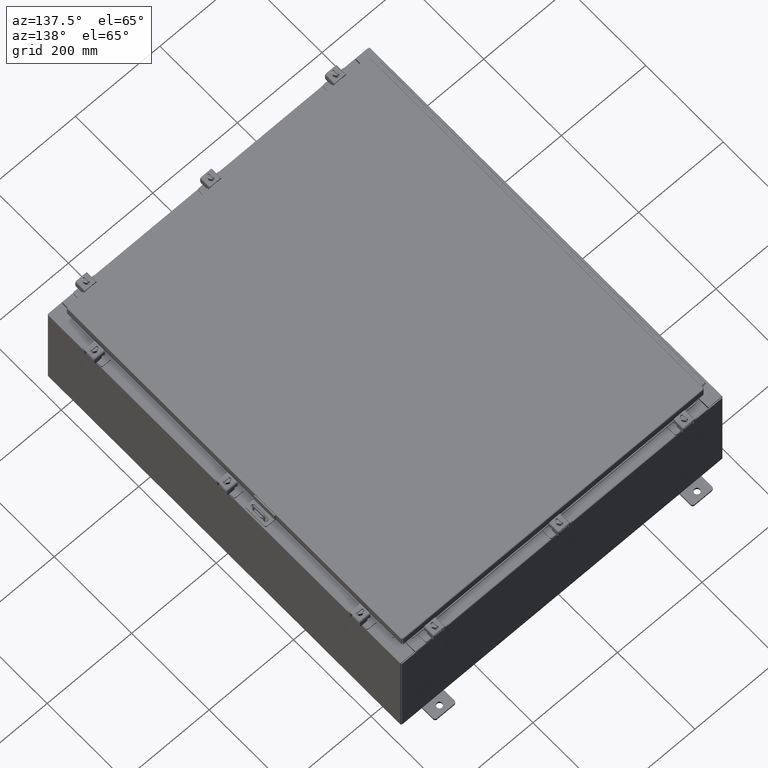
[diagram: clean part render]
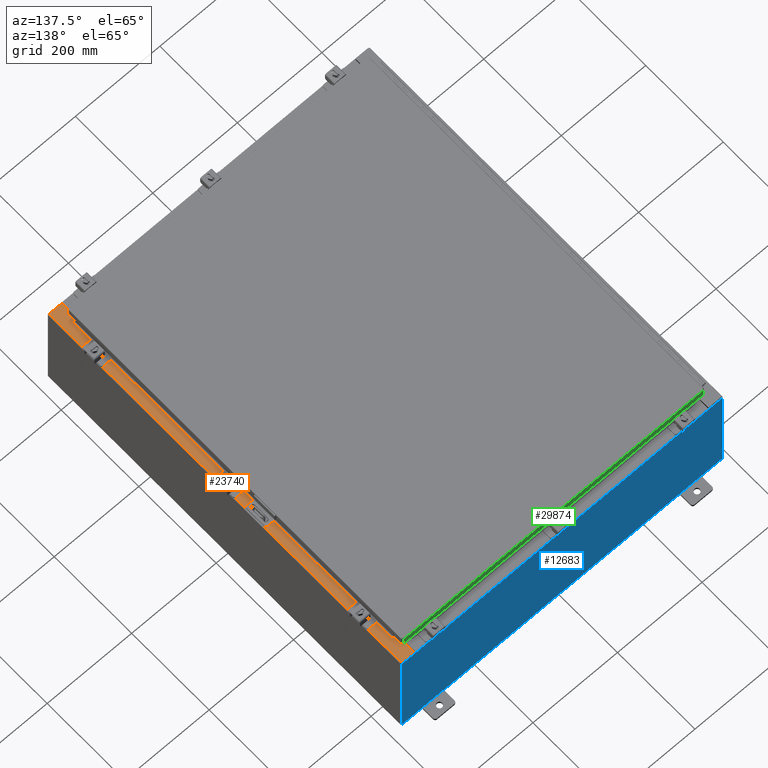
[diagram: same view with three faces highlighted in distinct colors, each labeled with its STEP entity id]
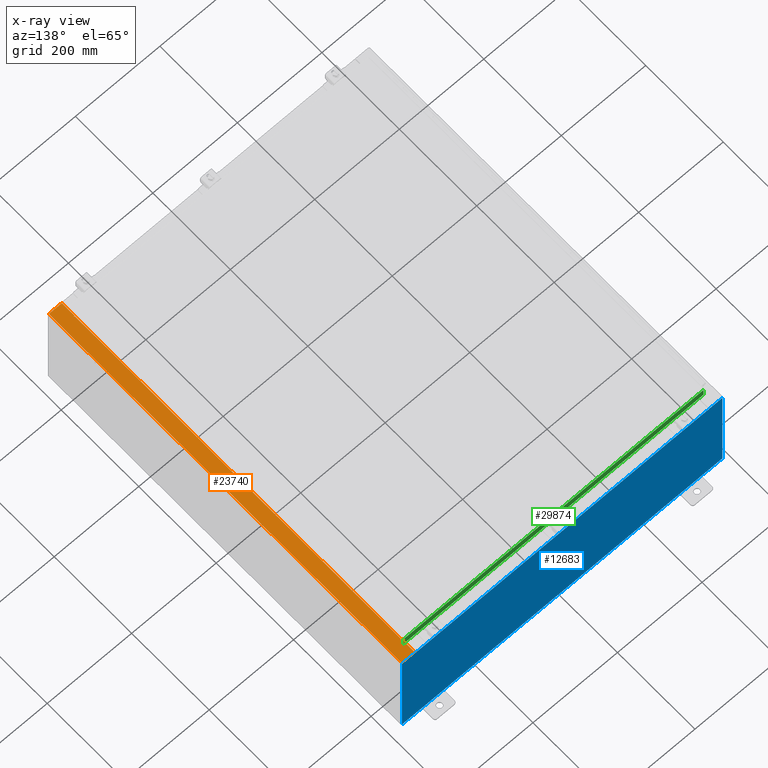
[diagram: x-ray of the same camera — body ghosted, the three highlighted faces saturated]
A machine part, auxiliary view with three faces highlighted in distinct colors.
The next image is the same camera in x-ray (body ghosted, the three faces saturated) — at least one of them is partly hidden behind the body in this view.
Their STEP definitions:

[orange] entity #23740 — the highlighted planar face has unit normal (-0, 0, -1).
#1186 = VERTEX_POINT ( 'NONE', #5946 ) ;
#1399 = CARTESIAN_POINT ( 'NONE',  ( 13.71270000000003700, 16.59375000000000000, 9.925300000000008900 ) ) ;
#1450 = ORIENTED_EDGE ( 'NONE', *, *, #27462, .F. ) ;
#1867 = LINE ( 'NONE', #14276, #17542 ) ;
#1913 = EDGE_CURVE ( 'NONE', #24183, #32082, #3360, .T. ) ;
#2129 = CARTESIAN_POINT ( 'NONE',  ( 14.91230000000003400, -17.92530000000000000, 9.925300000000001800 ) ) ;
#2144 = DIRECTION ( 'NONE',  ( 1.000000000000000000, 1.087045829762337300E-031, -5.349571789159789300E-015 ) ) ;
#2233 = DIRECTION ( 'NONE',  ( 5.349571789159788500E-015, 0.0000000000000000000, 1.000000000000000000 ) ) ;
#2407 = CARTESIAN_POINT ( 'NONE',  ( 13.71270000000003700, -16.59375000000000000, 9.925300000000008900 ) ) ;
#2753 = DIRECTION ( 'NONE',  ( 1.000000000000000000, 0.0000000000000000000, 0.0000000000000000000 ) ) ;
#3360 = LINE ( 'NONE', #22458, #37824 ) ;
#3495 = LINE ( 'NONE', #2129, #13431 ) ;
#4312 = LINE ( 'NONE', #20628, #8465 ) ;
#5073 = ORIENTED_EDGE ( 'NONE', *, *, #6265, .F. ) ;
#5141 = DIRECTION ( 'NONE',  ( -1.000000000000000000, 0.0000000000000000000, 0.0000000000000000000 ) ) ;
#5250 = VECTOR ( 'NONE', #5141, 39.37007874015748100 ) ;
#5273 = DIRECTION ( 'NONE',  ( -5.349571789159788500E-015, 0.0000000000000000000, -1.000000000000000000 ) ) ;
#5946 = CARTESIAN_POINT ( 'NONE',  ( 14.91230000000003400, 17.92530000000000000, 9.925300000000001800 ) ) ;
#6265 = EDGE_CURVE ( 'NONE', #27522, #20956, #4312, .T. ) ;
#6857 = CARTESIAN_POINT ( 'NONE',  ( 13.69970000000003400, 17.92530000000000000, 9.925300000000008900 ) ) ;
#7645 = EDGE_CURVE ( 'NONE', #25712, #27522, #39716, .T. ) ;
#7903 = ORIENTED_EDGE ( 'NONE', *, *, #34939, .T. ) ;
#8342 = LINE ( 'NONE', #31240, #28252 ) ;
#8465 = VECTOR ( 'NONE', #19848, 39.37007874015748100 ) ;
#9056 = LINE ( 'NONE', #42722, #34698 ) ;
#10764 = CARTESIAN_POINT ( 'NONE',  ( 13.69970000000003400, -17.92530000000000000, 9.925300000000008900 ) ) ;
#10821 = ORIENTED_EDGE ( 'NONE', *, *, #16646, .F. ) ;
#11211 = DIRECTION ( 'NONE',  ( -4.276128853718621600E-031, -1.000000000000000000, 2.287545828266532300E-045 ) ) ;
#12150 = LINE ( 'NONE', #38751, #21039 ) ;
#12807 = CARTESIAN_POINT ( 'NONE',  ( 13.75005000000003500, -16.63110000000000000, 9.925300000000008900 ) ) ;
#12814 = CARTESIAN_POINT ( 'NONE',  ( 13.75005000000003500, 16.59375000000000000, 9.925300000000008900 ) ) ;
#12926 = ORIENTED_EDGE ( 'NONE', *, *, #25475, .F. ) ;
#13431 = VECTOR ( 'NONE', #22140, 39.37007874015748100 ) ;
#13846 = FACE_OUTER_BOUND ( 'NONE', #32405, .T. ) ;
#13994 = LINE ( 'NONE', #25306, #32807 ) ;
#14276 = CARTESIAN_POINT ( 'NONE',  ( 13.71270000000003700, 16.59375000000000000, 9.925300000000008900 ) ) ;
#14350 = VERTEX_POINT ( 'NONE', #12807 ) ;
#14422 = ORIENTED_EDGE ( 'NONE', *, *, #40252, .F. ) ;
#15174 = CARTESIAN_POINT ( 'NONE',  ( 13.69970000000003400, -16.63110000000000000, 9.925300000000008900 ) ) ;
#15194 = PLANE ( 'NONE',  #31686 ) ;
#16646 = EDGE_CURVE ( 'NONE', #14350, #25712, #37571, .T. ) ;
#17542 = VECTOR ( 'NONE', #17612, 39.37007874015748100 ) ;
#17581 = EDGE_CURVE ( 'NONE', #1186, #29224, #13994, .T. ) ;
#17612 = DIRECTION ( 'NONE',  ( 1.000000000000000000, 0.0000000000000000000, 0.0000000000000000000 ) ) ;
#17659 = CARTESIAN_POINT ( 'NONE',  ( 13.69970000000003400, 16.63110000000000000, 9.925300000000008900 ) ) ;
#18521 = CARTESIAN_POINT ( 'NONE',  ( 5.335691853495967900E-014, 0.0000000000000000000, 9.925300000000083500 ) ) ;
#18767 = DIRECTION ( 'NONE',  ( -1.000000000000000000, 0.0000000000000000000, 0.0000000000000000000 ) ) ;
#19420 = AXIS2_PLACEMENT_3D ( 'NONE', #42738, #22773, #2753 ) ;
#19427 = ORIENTED_EDGE ( 'NONE', *, *, #7645, .F. ) ;
#19467 = DIRECTION ( 'NONE',  ( 1.000000000000000000, 0.0000000000000000000, 0.0000000000000000000 ) ) ;
#19848 = DIRECTION ( 'NONE',  ( -0.0000000000000000000, 1.000000000000000000, -0.0000000000000000000 ) ) ;
#20628 = CARTESIAN_POINT ( 'NONE',  ( 13.71270000000003700, -16.59375000000000000, 9.925300000000008900 ) ) ;
#20956 = VERTEX_POINT ( 'NONE', #1399 ) ;
#21039 = VECTOR ( 'NONE', #18767, 39.37007874015748100 ) ;
#22140 = DIRECTION ( 'NONE',  ( -0.0000000000000000000, -1.000000000000000000, -0.0000000000000000000 ) ) ;
#22254 = CARTESIAN_POINT ( 'NONE',  ( 13.75005000000003500, -16.61242500000000200, 9.925300000000008900 ) ) ;
#22280 = CARTESIAN_POINT ( 'NONE',  ( 13.75005000000003500, -16.59375000000000000, 9.925300000000008900 ) ) ;
#22458 = CARTESIAN_POINT ( 'NONE',  ( 5.335691853495967900E-014, -17.92530000000000000, 9.925300000000083500 ) ) ;
#22658 = EDGE_CURVE ( 'NONE', #1186, #32082, #3495, .T. ) ;
#22760 = DIRECTION ( 'NONE',  ( -4.276128853718621600E-031, -1.000000000000000000, 2.287545828266532300E-045 ) ) ;
#22773 = DIRECTION ( 'NONE',  ( 5.349571789159788500E-015, 0.0000000000000000000, 1.000000000000000000 ) ) ;
#23740 = ADVANCED_FACE ( 'NONE', ( #13846 ), #15194, .F. ) ;
#24183 = VERTEX_POINT ( 'NONE', #10764 ) ;
#24305 = ORIENTED_EDGE ( 'NONE', *, *, #17581, .T. ) ;
#25207 = CARTESIAN_POINT ( 'NONE',  ( 14.91230000000003400, -17.92530000000000000, 9.925300000000001800 ) ) ;
#25306 = CARTESIAN_POINT ( 'NONE',  ( 5.335691853495967900E-014, 17.92530000000000000, 9.925300000000083500 ) ) ;
#25475 = EDGE_CURVE ( 'NONE', #20956, #29720, #1867, .T. ) ;
#25629 = DIRECTION ( 'NONE',  ( 1.000000000000000000, 0.0000000000000000000, 0.0000000000000000000 ) ) ;
#25712 = VERTEX_POINT ( 'NONE', #22280 ) ;
#26515 = VERTEX_POINT ( 'NONE', #30556 ) ;
#27462 = EDGE_CURVE ( 'NONE', #26515, #33100, #12150, .T. ) ;
#27522 = VERTEX_POINT ( 'NONE', #2407 ) ;
#28252 = VECTOR ( 'NONE', #11211, 39.37007874015748100 ) ;
#28628 = DIRECTION ( 'NONE',  ( -1.000000000000000000, 0.0000000000000000000, 5.349571789159788500E-015 ) ) ;
#28738 = VECTOR ( 'NONE', #19467, 39.37007874015748100 ) ;
#29224 = VERTEX_POINT ( 'NONE', #6857 ) ;
#29720 = VERTEX_POINT ( 'NONE', #12814 ) ;
#30556 = CARTESIAN_POINT ( 'NONE',  ( 13.75005000000003500, 16.63110000000000000, 9.925300000000008900 ) ) ;
#31240 = CARTESIAN_POINT ( 'NONE',  ( 13.69970000000003400, -5.858168245728892200E-030, 9.925300000000008900 ) ) ;
#31686 = AXIS2_PLACEMENT_3D ( 'NONE', #18521, #5273, #28628 ) ;
#31840 = ORIENTED_EDGE ( 'NONE', *, *, #22658, .F. ) ;
#31867 = DIRECTION ( 'NONE',  ( -1.000000000000000000, 4.861730685829018000E-063, 5.349571789159789300E-015 ) ) ;
#32082 = VERTEX_POINT ( 'NONE', #25207 ) ;
#32405 = EDGE_LOOP ( 'NONE', ( #14422, #7903, #32786, #31840, #24305, #34109, #1450, #41025, #12926, #5073, #19427, #10821 ) ) ;
#32621 = AXIS2_PLACEMENT_3D ( 'NONE', #22254, #2233, #25629 ) ;
#32786 = ORIENTED_EDGE ( 'NONE', *, *, #1913, .T. ) ;
#32807 = VECTOR ( 'NONE', #31867, 39.37007874015748100 ) ;
#33100 = VERTEX_POINT ( 'NONE', #17659 ) ;
#33262 = VERTEX_POINT ( 'NONE', #15174 ) ;
#34109 = ORIENTED_EDGE ( 'NONE', *, *, #36986, .T. ) ;
#34698 = VECTOR ( 'NONE', #22760, 39.37007874015748100 ) ;
#34939 = EDGE_CURVE ( 'NONE', #33262, #24183, #9056, .T. ) ;
#35171 = EDGE_CURVE ( 'NONE', #29720, #26515, #41962, .T. ) ;
#36986 = EDGE_CURVE ( 'NONE', #29224, #33100, #8342, .T. ) ;
#37571 = CIRCLE ( 'NONE', #32621, 0.01867499999999949400 ) ;
#37824 = VECTOR ( 'NONE', #2144, 39.37007874015748100 ) ;
#38629 = LINE ( 'NONE', #39433, #28738 ) ;
#38751 = CARTESIAN_POINT ( 'NONE',  ( 13.75005000000003500, 16.63110000000000000, 9.925300000000008900 ) ) ;
#39433 = CARTESIAN_POINT ( 'NONE',  ( 13.69970000000003400, -16.63110000000000000, 9.925300000000008900 ) ) ;
#39716 = LINE ( 'NONE', #42626, #5250 ) ;
#40252 = EDGE_CURVE ( 'NONE', #33262, #14350, #38629, .T. ) ;
#41025 = ORIENTED_EDGE ( 'NONE', *, *, #35171, .F. ) ;
#41962 = CIRCLE ( 'NONE', #19420, 0.01867499999999949400 ) ;
#42626 = CARTESIAN_POINT ( 'NONE',  ( 13.75005000000003500, -16.59375000000000000, 9.925300000000008900 ) ) ;
#42722 = CARTESIAN_POINT ( 'NONE',  ( 13.69970000000003400, -5.858168245728892200E-030, 9.925300000000008900 ) ) ;
#42738 = CARTESIAN_POINT ( 'NONE',  ( 13.75005000000003500, 16.61242500000000200, 9.925300000000008900 ) ) ;

[blue] entity #12683 — the highlighted planar face has unit normal (0, -1, 0).
#143 = VECTOR ( 'NONE', #25066, 39.37007874015748100 ) ;
#496 = LINE ( 'NONE', #41241, #26107 ) ;
#1064 = CARTESIAN_POINT ( 'NONE',  ( -13.63720000000000000, -7.171100983368691200E-016, 4.912300000000000100 ) ) ;
#1168 = DIRECTION ( 'NONE',  ( 0.0000000000000000000, 0.0000000000000000000, 1.000000000000000000 ) ) ;
#1253 = VECTOR ( 'NONE', #4248, 39.37007874015748100 ) ;
#1332 = CARTESIAN_POINT ( 'NONE',  ( 13.63719999999999800, 0.0000000000000000000, 4.874950000000000100 ) ) ;
#1443 = CARTESIAN_POINT ( 'NONE',  ( -14.92530000000000200, 0.0000000000000000000, -4.925300000000000000 ) ) ;
#2290 = LINE ( 'NONE', #37525, #1253 ) ;
#2546 = LINE ( 'NONE', #5598, #38065 ) ;
#2800 = EDGE_LOOP ( 'NONE', ( #28625, #13926, #3280, #40445, #38409, #40868, #39631, #14550, #14463, #6926, #28685, #7218 ) ) ;
#2931 = CARTESIAN_POINT ( 'NONE',  ( 13.65587499999999800, 0.0000000000000000000, 4.874950000000000100 ) ) ;
#3280 = ORIENTED_EDGE ( 'NONE', *, *, #16472, .F. ) ;
#3830 = EDGE_CURVE ( 'NONE', #42234, #40767, #39295, .T. ) ;
#3975 = VERTEX_POINT ( 'NONE', #23640 ) ;
#4248 = DIRECTION ( 'NONE',  ( -4.340572780400004900E-014, 0.0000000000000000000, -1.000000000000000000 ) ) ;
#4343 = DIRECTION ( 'NONE',  ( 0.0000000000000000000, -1.000000000000000000, 0.0000000000000000000 ) ) ;
#4523 = CARTESIAN_POINT ( 'NONE',  ( -13.67455000000000000, -0.0000000000000000000, 0.0000000000000000000 ) ) ;
#5424 = CARTESIAN_POINT ( 'NONE',  ( -14.92530000000000200, 0.0000000000000000000, 4.925300000000000000 ) ) ;
#5598 = CARTESIAN_POINT ( 'NONE',  ( -13.63720000000000400, -7.171100983368691200E-016, 4.912300000000000100 ) ) ;
#6288 = DIRECTION ( 'NONE',  ( 0.0000000000000000000, 0.0000000000000000000, -1.000000000000000000 ) ) ;
#6552 = FACE_OUTER_BOUND ( 'NONE', #2800, .T. ) ;
#6621 = VERTEX_POINT ( 'NONE', #11855 ) ;
#6926 = ORIENTED_EDGE ( 'NONE', *, *, #22226, .T. ) ;
#7218 = ORIENTED_EDGE ( 'NONE', *, *, #28922, .T. ) ;
#7248 = CARTESIAN_POINT ( 'NONE',  ( -13.67455000000000000, 0.0000000000000000000, 4.925300000000000000 ) ) ;
#7536 = CARTESIAN_POINT ( 'NONE',  ( 0.0000000000000000000, 0.0000000000000000000, 0.0000000000000000000 ) ) ;
#7695 = VERTEX_POINT ( 'NONE', #7248 ) ;
#8419 = CIRCLE ( 'NONE', #40673, 0.01867499999999949400 ) ;
#11157 = DIRECTION ( 'NONE',  ( 0.0000000000000000000, 0.0000000000000000000, -1.000000000000000000 ) ) ;
#11855 = CARTESIAN_POINT ( 'NONE',  ( -13.67455000000000000, 0.0000000000000000000, 4.874950000000000100 ) ) ;
#12683 = ADVANCED_FACE ( 'NONE', ( #6552 ), #24373, .F. ) ;
#12905 = VECTOR ( 'NONE', #1168, 39.37007874015748100 ) ;
#13857 = VERTEX_POINT ( 'NONE', #1332 ) ;
#13926 = ORIENTED_EDGE ( 'NONE', *, *, #15029, .F. ) ;
#14155 = VERTEX_POINT ( 'NONE', #21882 ) ;
#14463 = ORIENTED_EDGE ( 'NONE', *, *, #34486, .T. ) ;
#14550 = ORIENTED_EDGE ( 'NONE', *, *, #31403, .T. ) ;
#15002 = LINE ( 'NONE', #41304, #31724 ) ;
#15029 = EDGE_CURVE ( 'NONE', #14155, #6621, #8419, .T. ) ;
#15402 = AXIS2_PLACEMENT_3D ( 'NONE', #7536, #4343, #27730 ) ;
#16405 = DIRECTION ( 'NONE',  ( -0.0000000000000000000, 1.000000000000000000, -0.0000000000000000000 ) ) ;
#16472 = EDGE_CURVE ( 'NONE', #28762, #14155, #496, .T. ) ;
#17750 = CARTESIAN_POINT ( 'NONE',  ( -14.92530000000000200, 0.0000000000000000000, -4.925300000000000000 ) ) ;
#17862 = DIRECTION ( 'NONE',  ( -0.0000000000000000000, -0.0000000000000000000, 1.000000000000000000 ) ) ;
#17887 = LINE ( 'NONE', #34982, #143 ) ;
#18137 = LINE ( 'NONE', #1443, #26005 ) ;
#21470 = DIRECTION ( 'NONE',  ( -1.000000000000000000, -0.0000000000000000000, -0.0000000000000000000 ) ) ;
#21522 = VECTOR ( 'NONE', #28794, 39.37007874015748100 ) ;
#21715 = CARTESIAN_POINT ( 'NONE',  ( -14.92530000000000200, 0.0000000000000000000, 4.925300000000000000 ) ) ;
#21882 = CARTESIAN_POINT ( 'NONE',  ( -13.63720000000000000, -0.0000000000000000000, 4.874950000000000100 ) ) ;
#22226 = EDGE_CURVE ( 'NONE', #26990, #42234, #18137, .T. ) ;
#22236 = VERTEX_POINT ( 'NONE', #28165 ) ;
#22619 = VECTOR ( 'NONE', #17862, 39.37007874015748100 ) ;
#22772 = VERTEX_POINT ( 'NONE', #36288 ) ;
#23544 = DIRECTION ( 'NONE',  ( 0.0000000000000000000, 0.0000000000000000000, -1.000000000000000000 ) ) ;
#23640 = CARTESIAN_POINT ( 'NONE',  ( 13.67455000000000000, 0.0000000000000000000, 4.925300000000000000 ) ) ;
#24373 = PLANE ( 'NONE',  #15402 ) ;
#24817 = LINE ( 'NONE', #36670, #41500 ) ;
#25066 = DIRECTION ( 'NONE',  ( 0.0000000000000000000, 0.0000000000000000000, 1.000000000000000000 ) ) ;
#26005 = VECTOR ( 'NONE', #21470, 39.37007874015748100 ) ;
#26107 = VECTOR ( 'NONE', #11157, 39.37007874015748100 ) ;
#26312 = DIRECTION ( 'NONE',  ( -0.0000000000000000000, 1.000000000000000000, -0.0000000000000000000 ) ) ;
#26579 = EDGE_CURVE ( 'NONE', #3975, #22236, #2290, .T. ) ;
#26912 = AXIS2_PLACEMENT_3D ( 'NONE', #2931, #26312, #6288 ) ;
#26990 = VERTEX_POINT ( 'NONE', #32843 ) ;
#27409 = CARTESIAN_POINT ( 'NONE',  ( 14.92529999999999800, 0.0000000000000000000, 4.925300000000000000 ) ) ;
#27730 = DIRECTION ( 'NONE',  ( 0.0000000000000000000, -0.0000000000000000000, -1.000000000000000000 ) ) ;
#28092 = VERTEX_POINT ( 'NONE', #27409 ) ;
#28165 = CARTESIAN_POINT ( 'NONE',  ( 13.67454999999999800, 0.0000000000000000000, 4.874950000000000100 ) ) ;
#28243 = EDGE_CURVE ( 'NONE', #13857, #22772, #17887, .T. ) ;
#28301 = LINE ( 'NONE', #5424, #21522 ) ;
#28625 = ORIENTED_EDGE ( 'NONE', *, *, #33153, .F. ) ;
#28685 = ORIENTED_EDGE ( 'NONE', *, *, #3830, .T. ) ;
#28762 = VERTEX_POINT ( 'NONE', #1064 ) ;
#28794 = DIRECTION ( 'NONE',  ( 1.000000000000000000, 0.0000000000000000000, 0.0000000000000000000 ) ) ;
#28922 = EDGE_CURVE ( 'NONE', #40767, #7695, #28301, .T. ) ;
#28977 = DIRECTION ( 'NONE',  ( 1.000000000000000000, 0.0000000000000000000, 0.0000000000000000000 ) ) ;
#30679 = LINE ( 'NONE', #4523, #12905 ) ;
#31029 = EDGE_CURVE ( 'NONE', #22236, #13857, #38519, .T. ) ;
#31403 = EDGE_CURVE ( 'NONE', #3975, #28092, #15002, .T. ) ;
#31526 = DIRECTION ( 'NONE',  ( 1.000000000000000000, 0.0000000000000000000, 0.0000000000000000000 ) ) ;
#31724 = VECTOR ( 'NONE', #31526, 39.37007874015748100 ) ;
#32843 = CARTESIAN_POINT ( 'NONE',  ( 14.92529999999999800, 0.0000000000000000000, -4.925300000000000000 ) ) ;
#33153 = EDGE_CURVE ( 'NONE', #6621, #7695, #30679, .T. ) ;
#34486 = EDGE_CURVE ( 'NONE', #28092, #26990, #24817, .T. ) ;
#34982 = CARTESIAN_POINT ( 'NONE',  ( 13.63719999999999800, 0.0000000000000000000, 0.0000000000000000000 ) ) ;
#36288 = CARTESIAN_POINT ( 'NONE',  ( 13.63719999999999800, 0.0000000000000000000, 4.912300000000000100 ) ) ;
#36381 = CARTESIAN_POINT ( 'NONE',  ( -13.65587500000000000, 0.0000000000000000000, 4.874950000000000100 ) ) ;
#36670 = CARTESIAN_POINT ( 'NONE',  ( 14.92529999999999800, 0.0000000000000000000, 4.925300000000000000 ) ) ;
#37525 = CARTESIAN_POINT ( 'NONE',  ( 13.67454999999978500, -0.0000000000000000000, -5.935537951421795000E-013 ) ) ;
#37825 = EDGE_CURVE ( 'NONE', #28762, #22772, #2546, .T. ) ;
#38065 = VECTOR ( 'NONE', #28977, 39.37007874015748100 ) ;
#38409 = ORIENTED_EDGE ( 'NONE', *, *, #28243, .F. ) ;
#38519 = CIRCLE ( 'NONE', #26912, 0.01867499999999949400 ) ;
#39295 = LINE ( 'NONE', #21715, #22619 ) ;
#39631 = ORIENTED_EDGE ( 'NONE', *, *, #26579, .F. ) ;
#39746 = DIRECTION ( 'NONE',  ( 0.0000000000000000000, 0.0000000000000000000, -1.000000000000000000 ) ) ;
#40445 = ORIENTED_EDGE ( 'NONE', *, *, #37825, .T. ) ;
#40673 = AXIS2_PLACEMENT_3D ( 'NONE', #36381, #16405, #39746 ) ;
#40767 = VERTEX_POINT ( 'NONE', #42518 ) ;
#40868 = ORIENTED_EDGE ( 'NONE', *, *, #31029, .F. ) ;
#41241 = CARTESIAN_POINT ( 'NONE',  ( -13.63720000000000000, -0.0000000000000000000, 0.0000000000000000000 ) ) ;
#41304 = CARTESIAN_POINT ( 'NONE',  ( -14.92530000000000200, 0.0000000000000000000, 4.925300000000000000 ) ) ;
#41500 = VECTOR ( 'NONE', #23544, 39.37007874015748100 ) ;
#42234 = VERTEX_POINT ( 'NONE', #17750 ) ;
#42518 = CARTESIAN_POINT ( 'NONE',  ( -14.92530000000000200, 0.0000000000000000000, 4.925300000000000000 ) ) ;

[green] entity #29874 — the highlighted planar face has unit normal (0, -1, -0).
#1933 = VERTEX_POINT ( 'NONE', #39397 ) ;
#2789 = CARTESIAN_POINT ( 'NONE',  ( 13.98915786437626400, 17.09400000000000100, 4.844676449176209300E-014 ) ) ;
#3235 = VECTOR ( 'NONE', #34972, 39.37007874015748100 ) ;
#3591 = CARTESIAN_POINT ( 'NONE',  ( -6.077841349889360200E-030, 17.09400000000000100, 4.844676449176209300E-014 ) ) ;
#4430 = VECTOR ( 'NONE', #4798, 39.37007874015748100 ) ;
#4798 = DIRECTION ( 'NONE',  ( 1.000000000000000000, -0.0000000000000000000, -0.0000000000000000000 ) ) ;
#5693 = ORIENTED_EDGE ( 'NONE', *, *, #18692, .F. ) ;
#6939 = DIRECTION ( 'NONE',  ( 3.555540745226020000E-031, -1.000000000000000000, -2.818880942772347100E-015 ) ) ;
#8826 = VERTEX_POINT ( 'NONE', #40679 ) ;
#9282 = VERTEX_POINT ( 'NONE', #29729 ) ;
#9679 = LINE ( 'NONE', #23564, #43109 ) ;
#11040 = CARTESIAN_POINT ( 'NONE',  ( -13.98915786437627600, 17.09400000000000500, -0.8500000000000032000 ) ) ;
#11593 = CARTESIAN_POINT ( 'NONE',  ( -13.98915786437627600, 17.09400000000000100, -0.07469999999999978000 ) ) ;
#12725 = DIRECTION ( 'NONE',  ( 0.0000000000000000000, 2.818880942772347100E-015, -1.000000000000000000 ) ) ;
#13327 = LINE ( 'NONE', #21465, #4430 ) ;
#13477 = CARTESIAN_POINT ( 'NONE',  ( -14.07800000000000700, 17.09400000000000500, -0.8500000000000032000 ) ) ;
#14580 = AXIS2_PLACEMENT_3D ( 'NONE', #3591, #6939, #30347 ) ;
#16701 = EDGE_LOOP ( 'NONE', ( #19829, #20288, #20835, #35046, #31764, #5693 ) ) ;
#18692 = EDGE_CURVE ( 'NONE', #1933, #25507, #36675, .T. ) ;
#18750 = CARTESIAN_POINT ( 'NONE',  ( 13.98915786437626500, 17.09400000000000100, -0.08770000000000224800 ) ) ;
#19491 = EDGE_CURVE ( 'NONE', #21099, #8826, #28256, .T. ) ;
#19829 = ORIENTED_EDGE ( 'NONE', *, *, #23403, .F. ) ;
#20288 = ORIENTED_EDGE ( 'NONE', *, *, #19491, .T. ) ;
#20762 = VECTOR ( 'NONE', #37884, 39.37007874015748100 ) ;
#20835 = ORIENTED_EDGE ( 'NONE', *, *, #31973, .F. ) ;
#21099 = VERTEX_POINT ( 'NONE', #18750 ) ;
#21465 = CARTESIAN_POINT ( 'NONE',  ( -13.23915786437627800, 17.09399999999999400, -0.8500000000000050800 ) ) ;
#21832 = LINE ( 'NONE', #34565, #20762 ) ;
#23372 = EDGE_CURVE ( 'NONE', #25507, #9282, #35281, .T. ) ;
#23403 = EDGE_CURVE ( 'NONE', #21099, #1933, #9679, .T. ) ;
#23564 = CARTESIAN_POINT ( 'NONE',  ( -14.07800000000000700, 17.09400000000000100, -0.08770000000000007000 ) ) ;
#23621 = PLANE ( 'NONE',  #14580 ) ;
#25389 = VECTOR ( 'NONE', #40190, 39.37007874015748100 ) ;
#25507 = VERTEX_POINT ( 'NONE', #11040 ) ;
#26906 = DIRECTION ( 'NONE',  ( -1.000000000000000000, -5.743565819211262900E-031, 7.762034361881697200E-017 ) ) ;
#28211 = FACE_OUTER_BOUND ( 'NONE', #16701, .T. ) ;
#28256 = LINE ( 'NONE', #2789, #29314 ) ;
#29314 = VECTOR ( 'NONE', #12725, 39.37007874015748100 ) ;
#29729 = CARTESIAN_POINT ( 'NONE',  ( -13.23915786437627800, 17.09399999999999400, -0.8500000000000050800 ) ) ;
#29874 = ADVANCED_FACE ( 'NONE', ( #28211 ), #23621, .F. ) ;
#30347 = DIRECTION ( 'NONE',  ( 0.0000000000000000000, 2.818880942772347100E-015, -1.000000000000000000 ) ) ;
#31425 = CARTESIAN_POINT ( 'NONE',  ( 13.23915786437626400, 17.09399999999999400, -0.8500000000000050800 ) ) ;
#31764 = ORIENTED_EDGE ( 'NONE', *, *, #23372, .F. ) ;
#31973 = EDGE_CURVE ( 'NONE', #41135, #8826, #21832, .T. ) ;
#34565 = CARTESIAN_POINT ( 'NONE',  ( -14.07800000000000700, 17.09400000000000500, -0.8500000000000032000 ) ) ;
#34972 = DIRECTION ( 'NONE',  ( -0.0000000000000000000, 2.818880942772347100E-015, -1.000000000000000000 ) ) ;
#35046 = ORIENTED_EDGE ( 'NONE', *, *, #41794, .F. ) ;
#35281 = LINE ( 'NONE', #13477, #25389 ) ;
#36675 = LINE ( 'NONE', #11593, #3235 ) ;
#37884 = DIRECTION ( 'NONE',  ( 1.000000000000000000, -0.0000000000000000000, 1.261330583805775800E-016 ) ) ;
#39397 = CARTESIAN_POINT ( 'NONE',  ( -13.98915786437627800, 17.09400000000000100, -0.08770000000000115200 ) ) ;
#40190 = DIRECTION ( 'NONE',  ( 1.000000000000000000, -0.0000000000000000000, 1.261330583805775800E-016 ) ) ;
#40679 = CARTESIAN_POINT ( 'NONE',  ( 13.98915786437626500, 17.09400000000000500, -0.8499999999999996400 ) ) ;
#41135 = VERTEX_POINT ( 'NONE', #31425 ) ;
#41794 = EDGE_CURVE ( 'NONE', #9282, #41135, #13327, .T. ) ;
#43109 = VECTOR ( 'NONE', #26906, 39.37007874015748100 ) ;